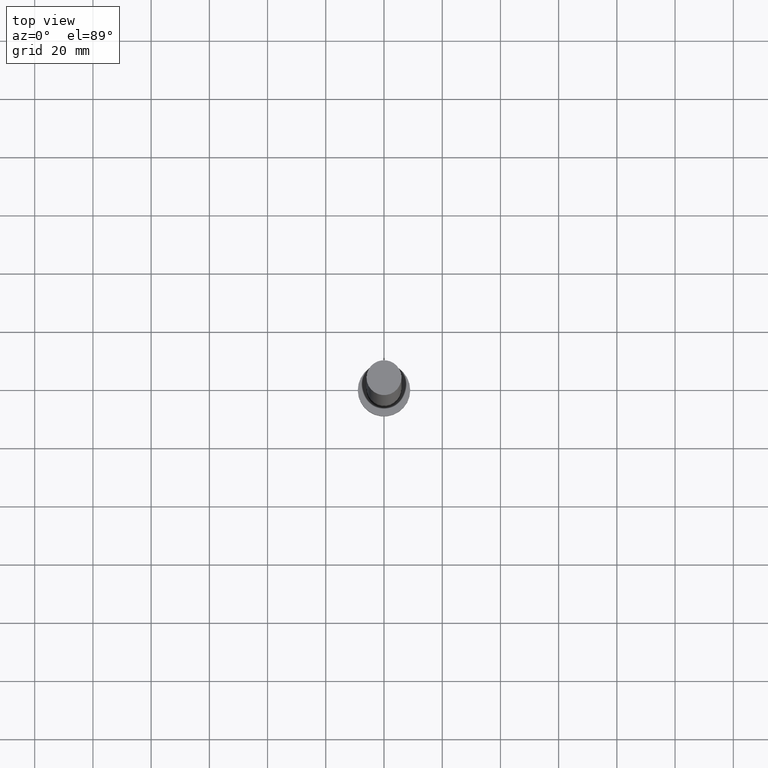
[diagram: clean part render]
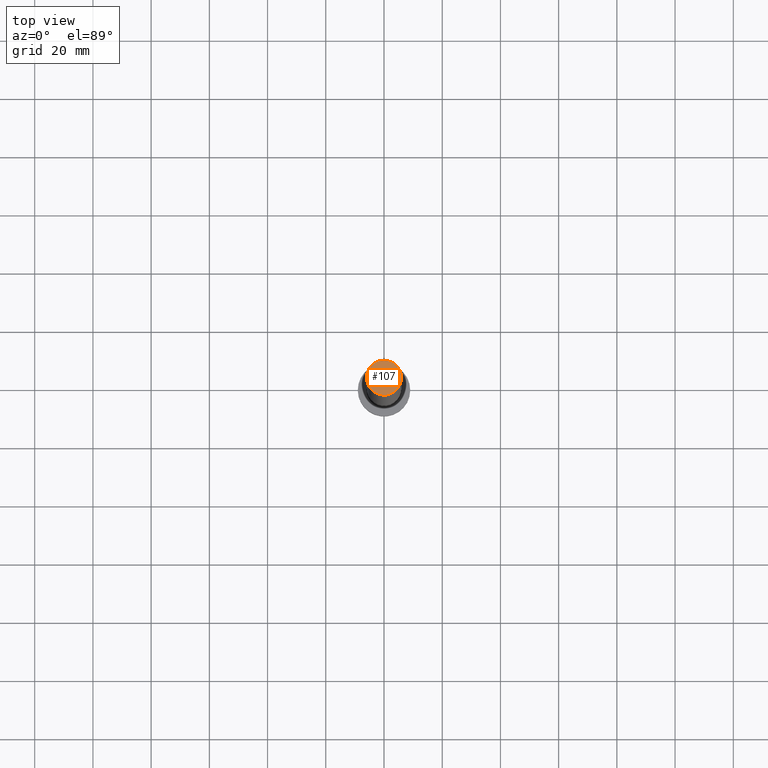
[diagram: same view with one face highlighted and labeled with its STEP entity id]
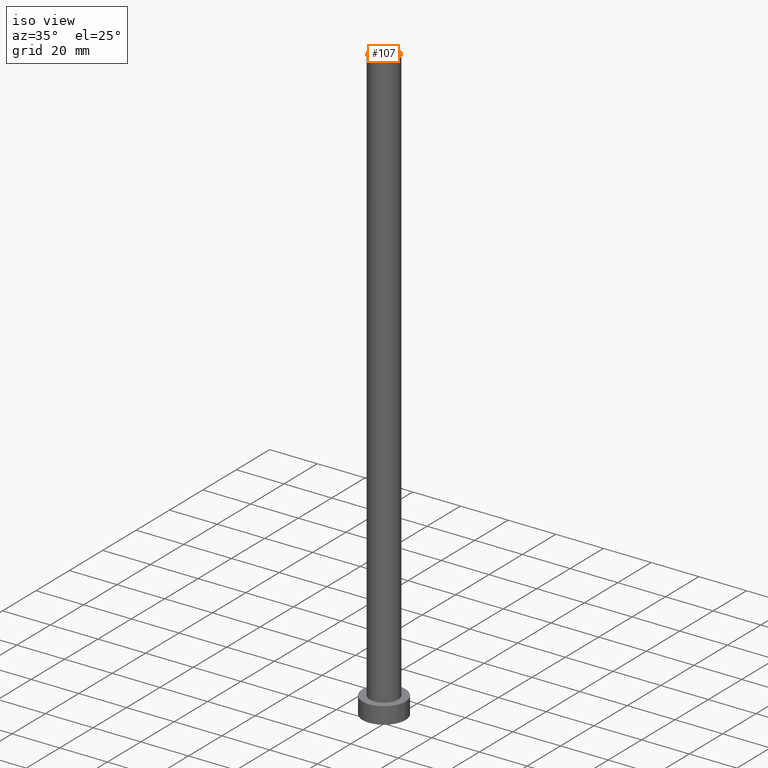
[diagram: same view with one face highlighted and labeled with its STEP entity id]
A machine part, top view. The second image highlights one B-rep face of the part: STEP entity #107.
A second angle (iso view) of the same face is appended — the face is thin or edge-on in the first view.
In plain terms, the highlighted planar face has unit normal (0, 0, 1).
Its self-contained STEP definition (entity closure, byte-faithful):
#2 = DIRECTION ( 'NONE',  ( 1.000000000000000000, 0.000000000000000000, 0.000000000000000000 ) ) ;
#10 = AXIS2_PLACEMENT_3D ( 'NONE', #119, #194, #25 ) ;
#18 = CARTESIAN_POINT ( 'NONE',  ( 0.000000000000000000, 0.000000000000000000, 250.0000000000000000 ) ) ;
#25 = DIRECTION ( 'NONE',  ( 1.000000000000000000, 0.000000000000000000, -0.000000000000000000 ) ) ;
#26 = PLANE ( 'NONE',  #10 ) ;
#28 = EDGE_CURVE ( 'NONE', #185, #235, #206, .T. ) ;
#45 = FACE_OUTER_BOUND ( 'NONE', #112, .T. ) ;
#57 = CARTESIAN_POINT ( 'NONE',  ( 0.000000000000000000, 0.000000000000000000, 250.0000000000000000 ) ) ;
#58 = EDGE_CURVE ( 'NONE', #235, #185, #253, .T. ) ;
#84 = ORIENTED_EDGE ( 'NONE', *, *, #28, .T. ) ;
#89 = DIRECTION ( 'NONE',  ( 0.000000000000000000, 0.000000000000000000, 1.000000000000000000 ) ) ;
#96 = AXIS2_PLACEMENT_3D ( 'NONE', #57, #113, #2 ) ;
#107 = ADVANCED_FACE ( 'NONE', ( #45 ), #26, .T. ) ;
#112 = EDGE_LOOP ( 'NONE', ( #84, #161 ) ) ;
#113 = DIRECTION ( 'NONE',  ( 0.000000000000000000, 0.000000000000000000, 1.000000000000000000 ) ) ;
#119 = CARTESIAN_POINT ( 'NONE',  ( 0.000000000000000000, 0.000000000000000000, 250.0000000000000000 ) ) ;
#161 = ORIENTED_EDGE ( 'NONE', *, *, #58, .T. ) ;
#185 = VERTEX_POINT ( 'NONE', #220 ) ;
#194 = DIRECTION ( 'NONE',  ( 0.000000000000000000, 0.000000000000000000, 1.000000000000000000 ) ) ;
#200 = CARTESIAN_POINT ( 'NONE',  ( 6.000000000000000888, 7.347880794884120722E-16, 250.0000000000000000 ) ) ;
#206 = CIRCLE ( 'NONE', #96, 6.000000000000000888 ) ;
#214 = DIRECTION ( 'NONE',  ( 1.000000000000000000, 0.000000000000000000, 0.000000000000000000 ) ) ;
#220 = CARTESIAN_POINT ( 'NONE',  ( -6.000000000000000888, 0.000000000000000000, 250.0000000000000000 ) ) ;
#235 = VERTEX_POINT ( 'NONE', #200 ) ;
#238 = AXIS2_PLACEMENT_3D ( 'NONE', #18, #89, #214 ) ;
#253 = CIRCLE ( 'NONE', #238, 6.000000000000000888 ) ;